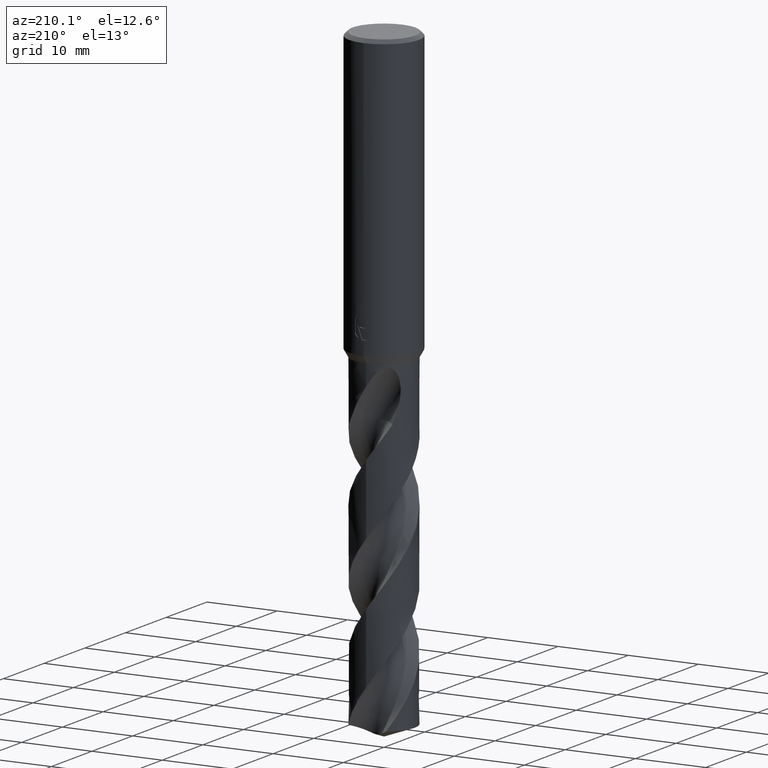
[diagram: clean part render]
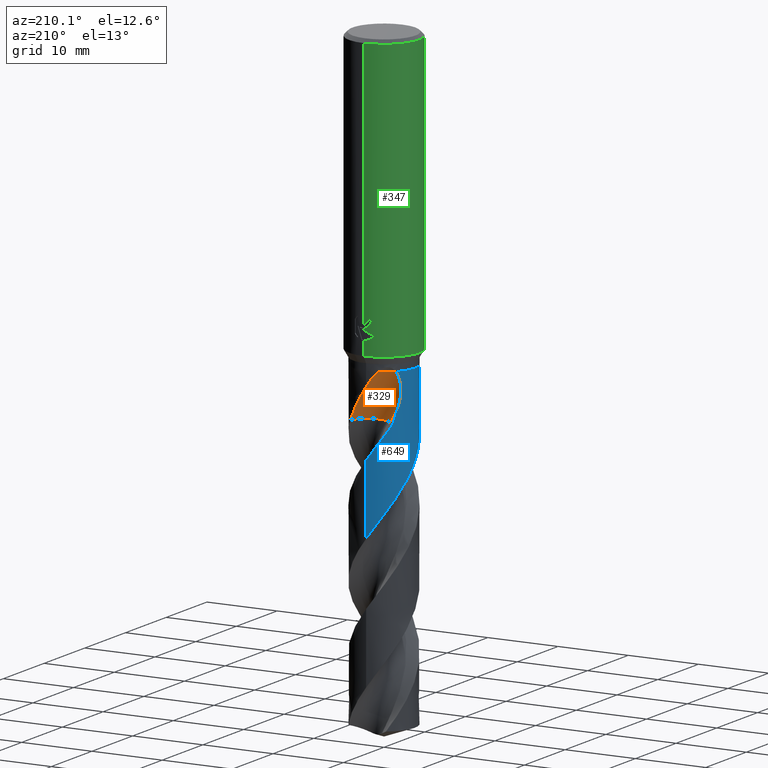
[diagram: same view with three faces highlighted in distinct colors, each labeled with its STEP entity id]
A machine part, auxiliary view with three faces highlighted in distinct colors.
Their STEP definitions:

[orange] entity #329 — the highlighted face is a SurfaceOfRevolution surface.
#327=VERTEX_POINT('',#823);
#329=ADVANCED_FACE('',(#825),#826,.F.);
#341=EDGE_CURVE('',#663,#327,#839,.T.);
#345=VERTEX_POINT('',#843);
#369=EDGE_CURVE('',#327,#635,#870,.T.);
#395=EDGE_CURVE('',#345,#477,#899,.T.);
#397=EDGE_CURVE('',#635,#521,#901,.T.);
#409=EDGE_CURVE('',#477,#521,#914,.T.);
#431=EDGE_CURVE('',#539,#663,#939,.T.);
#477=VERTEX_POINT('',#988);
#521=VERTEX_POINT('',#1035);
#531=EDGE_CURVE('',#539,#345,#1046,.T.);
#539=VERTEX_POINT('',#1054);
#635=VERTEX_POINT('',#1156);
#663=VERTEX_POINT('',#1189);
#823=CARTESIAN_POINT('',(-1.49956764850811,4.13647396674364,-42.0));
#825=FACE_OUTER_BOUND('',#1629,.T.);
#826=SURFACE_OF_REVOLUTION('',#1630,#1631);
#839=B_SPLINE_CURVE_WITH_KNOTS('',3,(#1678,#1679,#1680,#1681,#1682,#1683,#1684,#1685,#1686,#1687,#1688,#1689,#1690,#1691),.UNSPECIFIED.,.F.,.F.,(4,2,2,2,2,2,4),(0.0,2.15576154881915,3.33284950966387,4.3989839587945,5.63755759780346,7.12535606732662,7.89111209973637),.UNSPECIFIED.);
#843=CARTESIAN_POINT('',(-0.353185353426614,1.34132505732984,-48.6578));
#870=B_SPLINE_CURVE_WITH_KNOTS('',3,(#1849,#1850,#1851,#1852,#1853,#1854,#1855,#1856,#1857,#1858,#1859,#1860),.UNSPECIFIED.,.F.,.F.,(4,2,2,2,2,4),(0.0,0.95628261762468,1.83005544775629,2.71079653608656,3.25686361524105,3.82634129944145),.UNSPECIFIED.);
#899=CIRCLE('',#2592,2.93333333);
#901=B_SPLINE_CURVE_WITH_KNOTS('',3,(#2595,#2596,#2597,#2598,#2599,#2600,#2601,#2602),.UNSPECIFIED.,.F.,.F.,(4,2,2,4),(0.0,0.824741990476074,1.97805505680868,3.0737868511628),.UNSPECIFIED.);
#914=CIRCLE('',#2850,19.1191435449186);
#939=B_SPLINE_CURVE_WITH_KNOTS('',3,(#2918,#2919,#2920,#2921,#2922,#2923,#2924,#2925,#2926,#2927,#2928,#2929,#2930,#2931),.UNSPECIFIED.,.F.,.F.,(4,2,2,2,2,2,4),(0.0,2.15576154881915,3.33284950966387,4.3989839587945,5.63755759780346,7.12535606732662,7.89111209973637),.UNSPECIFIED.);
#988=CARTESIAN_POINT('',(-2.07417988905281,2.1791534409472,-48.6578));
#1035=CARTESIAN_POINT('',(-3.57993875328587,2.55797593519679,-46.2485858172271));
#1046=CIRCLE('',#3683,2.93333333);
#1054=CARTESIAN_POINT('',(2.80371770920414,3.39093144555015,-48.6578));
#1156=CARTESIAN_POINT('',(-3.33358693144172,2.87164032924058,-42.0));
#1189=CARTESIAN_POINT('',(-1.3052254413547E-012,4.39990436294102,-43.9807111286106));
#1629=EDGE_LOOP('',(#5289,#5290,#5291,#5292,#5293,#5294,#5295));
#1630=(B_SPLINE_CURVE(3,(#5297,#5298,#5299,#5300,#5301,#5302,#5303,#5304,#5305),.UNSPECIFIED.,.F.,.F.)B_SPLINE_CURVE_WITH_KNOTS((4,1,3,1,4),(-2.85637477769835,-2.55359021676958,-2.2508056558408,-1.94802109491203,-1.64523653398326),.UNSPECIFIED.)RATIONAL_B_SPLINE_CURVE((1.09167849033683,1.03055949677894,0.969440503221057,1.03055949677894,1.09167849033683,1.03055949677894,0.969440503221057,1.03055949677894,1.09167849033683))BOUNDED_CURVE()REPRESENTATION_ITEM('')GEOMETRIC_REPRESENTATION_ITEM()CURVE());
#1631=AXIS1_PLACEMENT('',#5312,#5313);
#1678=CARTESIAN_POINT('',(2.80371770920413,3.39093144555015,-48.6578));
#1679=CARTESIAN_POINT('',(2.51348316595106,3.63090379841182,-48.0457994123778));
#1680=CARTESIAN_POINT('',(2.17977653953127,3.84422464693483,-47.47521739291));
#1681=CARTESIAN_POINT('',(1.5978897982661,4.10569330854763,-46.5220270816189));
#1682=CARTESIAN_POINT('',(1.38849970313661,4.18090785448243,-46.1866643448757));
#1683=CARTESIAN_POINT('',(0.983147956990871,4.2933177590356,-45.5374938248999));
#1684=CARTESIAN_POINT('',(0.788996004087948,4.33303177861168,-45.2267113355814));
#1685=CARTESIAN_POINT('',(0.368741122724618,4.39034807618537,-44.556899026901));
#1686=CARTESIAN_POINT('',(0.139127374482289,4.40380421035896,-44.1926259639668));
#1687=CARTESIAN_POINT('',(-0.37078491324727,4.3930775267784,-43.4133298508399));
#1688=CARTESIAN_POINT('',(-0.67311051076259,4.35990253359284,-42.9699046527819));
#1689=CARTESIAN_POINT('',(-1.14616479019225,4.25119237186679,-42.3766129955495));
#1690=CARTESIAN_POINT('',(-1.31944426832932,4.20177327874594,-42.1764895361742));
#1691=CARTESIAN_POINT('',(-1.49956764850812,4.13647396674363,-42.0));
#1849=CARTESIAN_POINT('',(-1.37240712519494,4.4499,-42.0));
#1850=CARTESIAN_POINT('',(-1.47261664998568,4.14730035524695,-42.0));
#1851=CARTESIAN_POINT('',(-1.62600246707385,3.86735149607128,-41.9999999999875));
#1852=CARTESIAN_POINT('',(-2.02498230329928,3.40766107195271,-41.9999999999875));
#1853=CARTESIAN_POINT('',(-2.25462145756226,3.22950054938287,-42.0000000000007));
#1854=CARTESIAN_POINT('',(-2.77705059324489,2.97004095884365,-42.0000000000007));
#1855=CARTESIAN_POINT('',(-3.06097264737727,2.89411186290925,-42.0000000000001));
#1856=CARTESIAN_POINT('',(-3.53426626722661,2.85496235740067,-42.0000000000001));
#1857=CARTESIAN_POINT('',(-3.71643629393769,2.86004288335264,-42.0));
#1858=CARTESIAN_POINT('',(-4.0848784723059,2.9072921064903,-42.0));
#1859=CARTESIAN_POINT('',(-4.27006535935382,2.95091103145621,-42.0));
#1860=CARTESIAN_POINT('',(-4.4499,3.01132854258825,-42.0));
#2592=AXIS2_PLACEMENT_3D('',#5405,#5406,#5407);
#2595=CARTESIAN_POINT('',(-3.33358693144172,2.87164032924058,-42.0));
#2596=CARTESIAN_POINT('',(-3.44229852524496,2.74544157619789,-42.2187084126268));
#2597=CARTESIAN_POINT('',(-3.52798305469872,2.63150193611133,-42.490543912431));
#2598=CARTESIAN_POINT('',(-3.68182194532079,2.41401261591013,-43.239009068012));
#2599=CARTESIAN_POINT('',(-3.73286762146872,2.32913956487915,-43.7681043249718));
#2600=CARTESIAN_POINT('',(-3.73917799721828,2.31899944088827,-44.9217496596127));
#2601=CARTESIAN_POINT('',(-3.70203852532119,2.38709221802838,-45.5541228590299));
#2602=CARTESIAN_POINT('',(-3.57993875328587,2.55797593519678,-46.2485858172271));
#2850=AXIS2_PLACEMENT_3D('',#5418,#5419,#5420);
#2918=CARTESIAN_POINT('',(2.80371770920413,3.39093144555015,-48.6578));
#2919=CARTESIAN_POINT('',(2.51348316595106,3.63090379841182,-48.0457994123778));
#2920=CARTESIAN_POINT('',(2.17977653953127,3.84422464693483,-47.47521739291));
#2921=CARTESIAN_POINT('',(1.5978897982661,4.10569330854763,-46.5220270816189));
#2922=CARTESIAN_POINT('',(1.38849970313661,4.18090785448243,-46.1866643448757));
#2923=CARTESIAN_POINT('',(0.983147956990871,4.2933177590356,-45.5374938248999));
#2924=CARTESIAN_POINT('',(0.788996004087948,4.33303177861168,-45.2267113355814));
#2925=CARTESIAN_POINT('',(0.368741122724618,4.39034807618537,-44.556899026901));
#2926=CARTESIAN_POINT('',(0.139127374482289,4.40380421035896,-44.1926259639668));
#2927=CARTESIAN_POINT('',(-0.37078491324727,4.3930775267784,-43.4133298508399));
#2928=CARTESIAN_POINT('',(-0.67311051076259,4.35990253359284,-42.9699046527819));
#2929=CARTESIAN_POINT('',(-1.14616479019225,4.25119237186679,-42.3766129955495));
#2930=CARTESIAN_POINT('',(-1.31944426832932,4.20177327874594,-42.1764895361742));
#2931=CARTESIAN_POINT('',(-1.49956764850812,4.13647396674363,-42.0));
#3683=AXIS2_PLACEMENT_3D('',#5568,#5569,#5570);
#5289=ORIENTED_EDGE('',*,*,#397,.F.);
#5290=ORIENTED_EDGE('',*,*,#369,.F.);
#5291=ORIENTED_EDGE('',*,*,#341,.F.);
#5292=ORIENTED_EDGE('',*,*,#431,.F.);
#5293=ORIENTED_EDGE('',*,*,#531,.T.);
#5294=ORIENTED_EDGE('',*,*,#395,.T.);
#5295=ORIENTED_EDGE('',*,*,#409,.T.);
#5297=CARTESIAN_POINT('',(-2.07417988905281,2.1791534409472,-48.6578));
#5298=CARTESIAN_POINT('',(-1.66791224952913,1.77287909208874,-48.6578));
#5299=CARTESIAN_POINT('',(-0.611500645605306,1.19559870064149,-48.6578));
#5300=CARTESIAN_POINT('',(0.585677398980423,1.32218012430348,-48.6578));
#5301=CARTESIAN_POINT('',(1.11694950665095,1.54095441227129,-48.6578));
#5302=CARTESIAN_POINT('',(1.64822161432148,1.75972870023909,-48.6578));
#5303=CARTESIAN_POINT('',(2.58738335315479,2.51287765998478,-48.6578));
#5304=CARTESIAN_POINT('',(2.93095433290253,3.66666148251376,-48.6578));
#5305=CARTESIAN_POINT('',(2.93332547722847,4.24121053972219,-48.6578));
#5312=CARTESIAN_POINT('',(-1.49154508875708,21.26666665,-49.5900156804732));
#5313=DIRECTION('',(0.847998304005088,-0.0,0.52999894000318));
#5405=CARTESIAN_POINT('',(1.71269515501595E-005,4.25331620304845,-48.6578));
#5406=DIRECTION('',(0.0,0.0,-1.0));
#5407=DIRECTION('',(0.707100942428954,0.70711261989593,0.0));
#5418=CARTESIAN_POINT('',(-1.49154508875708,21.26666665,-49.5900156804732));
#5419=DIRECTION('',(-0.847998304005088,1.94380786969579E-017,-0.52999894000318));
#5420=DIRECTION('',(-0.0535598124395258,-0.994880693103216,0.0856956999032413));
#5568=CARTESIAN_POINT('',(1.71269515501595E-005,4.25331620304845,-48.6578));
#5569=DIRECTION('',(0.0,0.0,-1.0));
#5570=DIRECTION('',(0.707100942428954,0.70711261989593,0.0));

[blue] entity #649 — the highlighted conical surface has half-angle 0 deg.
#279=VERTEX_POINT('',#773);
#315=EDGE_CURVE('',#561,#403,#811,.T.);
#333=EDGE_CURVE('',#521,#561,#830,.T.);
#335=EDGE_CURVE('',#621,#641,#832,.T.);
#397=EDGE_CURVE('',#635,#521,#901,.T.);
#403=VERTEX_POINT('',#907);
#483=EDGE_CURVE('',#279,#535,#994,.T.);
#521=VERTEX_POINT('',#1035);
#535=VERTEX_POINT('',#1050);
#561=VERTEX_POINT('',#1077);
#565=EDGE_CURVE('',#535,#621,#1081,.T.);
#577=EDGE_CURVE('',#641,#635,#1093,.T.);
#621=VERTEX_POINT('',#1142);
#635=VERTEX_POINT('',#1156);
#641=VERTEX_POINT('',#1163);
#649=ADVANCED_FACE('',(#1172),#1173,.T.);
#717=EDGE_CURVE('',#403,#279,#1248,.T.);
#773=CARTESIAN_POINT('',(-1.72999698641517E-012,4.39994662907025,-63.1689129008051));
#811=B_SPLINE_CURVE_WITH_KNOTS('',3,(#1523,#1524,#1525,#1526,#1527,#1528,#1529,#1530,#1531,#1532,#1533,#1534,#1535,#1536,#1537,#1538,#1539,#1540,#1541,#1542,#1543,#1544,#1545,#1546,#1547,#1548,#1549,#1550,#1551,#1552,#1553,#1554,#1555,#1556,#1557,#1558,#1559,#1560,#1561,#1562,#1563,#1564,#1565,#1566,#1567,#1568,#1569,#1570,#1571,#1572,#1573,#1574,#1575,#1576,#1577,#1578,#1579,#1580,#1581,#1582,#1583,#1584,#1585,#1586,#1587,#1588,#1589,#1590,#1591,#1592,#1593,#1594,#1595,#1596,#1597,#1598,#1599,#1600,#1601,#1602,#1603,#1604,#1605,#1606,#1607,#1608,#1609,#1610,#1611,#1612,#1613,#1614),.UNSPECIFIED.,.F.,.F.,(4,2,2,2,2,2,2,2,2,2,2,2,2,2,2,2,2,2,2,2,2,2,2,2,2,2,2,2,2,2,2,2,2,2,2,2,2,2,2,2,2,2,2,2,2,4),(0.0,0.188253537942638,0.310667571732745,0.368015120108587,0.859253428127349,1.03084854026869,1.14065679344308,1.24377536153375,1.38197476283653,1.53557516009202,1.61382984971237,2.17629791244006,2.55120610951194,2.92958990199076,3.3334873049027,4.40505101746511,4.94586345637353,7.01752759592153,7.62671836675117,8.22875743289926,8.8377335792982,10.044897861996,12.363678365139,12.7435472120691,14.219295182485,16.6650966769269,17.8755386632908,20.2760069407097,20.8856519834839,23.3007771965269,24.5182944187921,25.5092115233415,27.3595020648481,28.56333673034,31.0973801045769,31.5007969005396,32.9889989745965,35.4329396304814,36.5814572233399,38.9889780559688,40.1206590792744,41.0976029672566,43.4730550609567,44.0411999934884,46.0472631615811,48.0635370413985),.UNSPECIFIED.);
#830=B_SPLINE_CURVE_WITH_KNOTS('',3,(#1663,#1664,#1665,#1666),.UNSPECIFIED.,.F.,.F.,(4,4),(0.0,2.528625359465),.UNSPECIFIED.);
#832=LINE('',#1669,#1670);
#901=B_SPLINE_CURVE_WITH_KNOTS('',3,(#2595,#2596,#2597,#2598,#2599,#2600,#2601,#2602),.UNSPECIFIED.,.F.,.F.,(4,2,2,4),(0.0,0.824741990476074,1.97805505680868,3.0737868511628),.UNSPECIFIED.);
#907=CARTESIAN_POINT('',(1.51453929892228E-011,4.39992481637956,-53.2662717638973));
#994=B_SPLINE_CURVE_WITH_KNOTS('',3,(#3347,#3348,#3349,#3350,#3351,#3352,#3353,#3354,#3355,#3356,#3357,#3358,#3359,#3360,#3361,#3362,#3363,#3364,#3365,#3366,#3367,#3368,#3369,#3370,#3371,#3372,#3373,#3374,#3375,#3376,#3377,#3378,#3379,#3380,#3381,#3382,#3383,#3384,#3385,#3386,#3387,#3388,#3389,#3390,#3391,#3392,#3393,#3394,#3395,#3396,#3397,#3398,#3399,#3400,#3401,#3402,#3403,#3404,#3405,#3406,#3407,#3408,#3409,#3410,#3411,#3412,#3413,#3414,#3415,#3416,#3417,#3418,#3419,#3420,#3421,#3422,#3423,#3424),.UNSPECIFIED.,.F.,.F.,(4,2,2,2,2,2,2,2,2,2,2,2,2,2,2,2,2,2,2,2,2,2,2,2,2,2,2,2,2,2,2,2,2,2,2,2,2,2,4),(0.0,2.38158495089044,3.34370118732634,5.29067246798251,6.92036597297329,7.83185490015238,10.2543834718179,10.8557028205317,13.2841928761481,14.2041513812472,16.7423789497106,17.0420610142299,19.3070623540078,20.4294436426887,22.8589142573478,23.4618247443925,25.8968627470963,26.8316143139627,28.15471933148,29.376904905831,29.5253060991929,31.6178238319261,32.1165925123855,33.0069014695142,35.4463483811164,36.4476094126919,38.883160304454,39.0925028515234,43.3356823436521,44.3980819223111,44.8561609553654,45.9851481560077,46.6349259329818,46.9662502034331,47.2058308303168,47.4181915376629,47.6873889016957,48.2455132953649,49.1459108642999),.UNSPECIFIED.);
#1035=CARTESIAN_POINT('',(-3.57993875328587,2.55797593519679,-46.2485858172271));
#1050=CARTESIAN_POINT('',(-2.80371770920414,-3.39093144555015,-48.6578));
#1077=CARTESIAN_POINT('',(-3.05827995742593,3.1632535091789,-48.6578));
#1081=B_SPLINE_CURVE_WITH_KNOTS('',3,(#3826,#3827,#3828,#3829,#3830,#3831,#3832,#3833,#3834,#3835,#3836,#3837,#3838,#3839),.UNSPECIFIED.,.F.,.F.,(4,2,2,2,2,2,4),(0.0,2.15576154881917,3.33284950966375,4.39898395879411,5.63755759780335,7.1253560673268,7.89111209973673),.UNSPECIFIED.);
#1093=CIRCLE('',#3898,4.3999);
#1142=CARTESIAN_POINT('',(1.30211682229816E-012,-4.39990436294101,-43.9807111286106));
#1156=CARTESIAN_POINT('',(-3.33358693144172,2.87164032924058,-42.0));
#1163=CARTESIAN_POINT('',(5.38606711119224E-016,-4.3999,-42.0));
#1172=FACE_OUTER_BOUND('',#4711,.T.);
#1173=CONICAL_SURFACE('',#4712,4.39995,2.20271444614333E-006);
#1248=LINE('',#5137,#5138);
#1523=CARTESIAN_POINT('',(-3.05827995742593,3.1632535091789,-48.6578));
#1524=CARTESIAN_POINT('',(-3.0327411380088,3.18794497341676,-48.7095282398878));
#1525=CARTESIAN_POINT('',(-3.00683337159632,3.21239597597386,-48.7612035636025));
#1526=CARTESIAN_POINT('',(-2.96333749913047,3.25244929398528,-48.846360109749));
#1527=CARTESIAN_POINT('',(-2.94603140109173,3.26813446185506,-48.8798406691308));
#1528=CARTESIAN_POINT('',(-2.92031716227707,3.29106712292583,-48.9289555739717));
#1529=CARTESIAN_POINT('',(-2.91207369302443,3.29836370302396,-48.9446075659908));
#1530=CARTESIAN_POINT('',(-2.83279282034171,3.36800705533468,-49.094228564469));
#1531=CARTESIAN_POINT('',(-2.75993428325304,3.42804262245876,-49.2246758590977));
#1532=CARTESIAN_POINT('',(-2.65595325416952,3.50803781195866,-49.4020327026167));
#1533=CARTESIAN_POINT('',(-2.62871436713723,3.52849781307282,-49.4477501374524));
#1534=CARTESIAN_POINT('',(-2.58343977127982,3.56168282961354,-49.5226861084969));
#1535=CARTESIAN_POINT('',(-2.56564880626663,3.57452036516756,-49.5518738610785));
#1536=CARTESIAN_POINT('',(-2.53089551446547,3.59920290383422,-49.6084525119566));
#1537=CARTESIAN_POINT('',(-2.51396498634439,3.61104915494578,-49.6358181288085));
#1538=CARTESIAN_POINT('',(-2.47410487893776,3.63852208090583,-49.6998569088954));
#1539=CARTESIAN_POINT('',(-2.45112237017642,3.65404413336454,-49.7364833079446));
#1540=CARTESIAN_POINT('',(-2.40227874112399,3.68636389947742,-49.8138727481561));
#1541=CARTESIAN_POINT('',(-2.37642235944096,3.70308446468295,-49.8545784309596));
#1542=CARTESIAN_POINT('',(-2.33718488451999,3.72787951619217,-49.916143174252));
#1543=CARTESIAN_POINT('',(-2.32398714571723,3.73612160158428,-49.9368225896692));
#1544=CARTESIAN_POINT('',(-2.21447516153345,3.80370065845982,-50.1083802813118));
#1545=CARTESIAN_POINT('',(-2.11672377703261,3.85890562926488,-50.2608235984182));
#1546=CARTESIAN_POINT('',(-1.95186400465141,3.94398497328995,-50.5142838408132));
#1547=CARTESIAN_POINT('',(-1.88513530921175,3.97630972181561,-50.6159296661454));
#1548=CARTESIAN_POINT('',(-1.7495929182581,4.03779703806268,-50.8199076039876));
#1549=CARTESIAN_POINT('',(-1.68062974740423,4.06698914193854,-50.9224429269622));
#1550=CARTESIAN_POINT('',(-1.53634995338965,4.1237524122817,-51.1339908317921));
#1551=CARTESIAN_POINT('',(-1.46132371610243,4.15093255449208,-51.2422543253315));
#1552=CARTESIAN_POINT('',(-1.18374975771233,4.24301236812389,-51.638929552948));
#1553=CARTESIAN_POINT('',(-0.977687577739532,4.29516731990296,-51.9256287628454));
#1554=CARTESIAN_POINT('',(-0.663323781804006,4.35095282146715,-52.3593771757845));
#1555=CARTESIAN_POINT('',(-0.557387535507825,4.36578102595928,-52.5050773022151));
#1556=CARTESIAN_POINT('',(-0.0443070736059122,4.41867333941312,-53.2080779599381));
#1557=CARTESIAN_POINT('',(0.366823644748641,4.40371470244938,-53.761278782907));
#1558=CARTESIAN_POINT('',(0.888906618487811,4.31088467160883,-54.4819705381562));
#1559=CARTESIAN_POINT('',(1.00660211361483,4.28492995798384,-54.6456843378718));
#1560=CARTESIAN_POINT('',(1.23814947525487,4.2238046976726,-54.9713726447134));
#1561=CARTESIAN_POINT('',(1.35195592470209,4.18876562683544,-55.1332583364792));
#1562=CARTESIAN_POINT('',(1.57773798652227,4.10908990373662,-55.4588961594344));
#1563=CARTESIAN_POINT('',(1.68960659620233,4.06437225251376,-55.6225592060009));
#1564=CARTESIAN_POINT('',(2.01740590704932,3.91745787612543,-56.1108023071305));
#1565=CARTESIAN_POINT('',(2.22688042677672,3.80227756065534,-56.4345893332658));
#1566=CARTESIAN_POINT('',(2.80820363436927,3.41809799376888,-57.3829929285566));
#1567=CARTESIAN_POINT('',(3.14893949706914,3.10710687011122,-58.0021544125783));
#1568=CARTESIAN_POINT('',(3.4825377467898,2.69017184175722,-58.7274458575724));
#1569=CARTESIAN_POINT('',(3.52796001813354,2.63032038032635,-58.8295083400139));
#1570=CARTESIAN_POINT('',(3.74220468409639,2.33248697537117,-59.3285286082001));
#1571=CARTESIAN_POINT('',(3.88864707670525,2.07920061336112,-59.7252791277462));
#1572=CARTESIAN_POINT('',(4.20828061036533,1.3725330681872,-60.7799388723287));
#1573=CARTESIAN_POINT('',(4.33353346223091,0.902042086509316,-61.4317859658759));
#1574=CARTESIAN_POINT('',(4.40265609782136,0.182686979384412,-62.4153987941264));
#1575=CARTESIAN_POINT('',(4.4060919857165,-0.057080486269397,-62.7404349216127));
#1576=CARTESIAN_POINT('',(4.35800668513883,-0.770061365308394,-63.711194501672));
#1577=CARTESIAN_POINT('',(4.24949419188234,-1.23558141785587,-64.353080095665));
#1578=CARTESIAN_POINT('',(4.02296818221609,-1.78600909997855,-65.1627248787));
#1579=CARTESIAN_POINT('',(3.9725107418717,-1.89559605746947,-65.326595289408));
#1580=CARTESIAN_POINT('',(3.70002932499942,-2.4285334103205,-66.1398567675578));
#1581=CARTESIAN_POINT('',(3.41465141977258,-2.81563167881674,-66.785167068757));
#1582=CARTESIAN_POINT('',(2.9005894016302,-3.31725046589189,-67.7623411950174));
#1583=CARTESIAN_POINT('',(2.71469369425478,-3.47104427207737,-68.0890415252756));
#1584=CARTESIAN_POINT('',(2.35612981615507,-3.72112416225277,-68.6827082116681));
#1585=CARTESIAN_POINT('',(2.18803949809467,-3.82236916290228,-68.9486052237769));
#1586=CARTESIAN_POINT('',(1.68860964830643,-4.07946969808654,-69.7130290152621));
#1587=CARTESIAN_POINT('',(1.34351104905469,-4.20580722553718,-70.2094753624929));
#1588=CARTESIAN_POINT('',(0.754297211786893,-4.34137226489917,-71.0307164111667));
#1589=CARTESIAN_POINT('',(0.518238064455026,-4.37581997656342,-71.3533886228085));
#1590=CARTESIAN_POINT('',(-0.219489884481141,-4.42297265830365,-72.359221860171));
#1591=CARTESIAN_POINT('',(-0.721821067954286,-4.36926557538777,-73.0365303579577));
#1592=CARTESIAN_POINT('',(-1.28127018372863,-4.21004334477176,-73.8265096282787));
#1593=CARTESIAN_POINT('',(-1.35745516286381,-4.1860993245528,-73.9349471402007));
#1594=CARTESIAN_POINT('',(-1.71137741901554,-4.0641930309209,-74.4439752194572));
#1595=CARTESIAN_POINT('',(-1.97954376747794,-3.94054904095961,-74.8443419002137));
#1596=CARTESIAN_POINT('',(-2.65011539560087,-3.5455118678637,-75.9025949637239));
#1597=CARTESIAN_POINT('',(-3.02343855130235,-3.23299787956609,-76.5544739992369));
#1598=CARTESIAN_POINT('',(-3.48631285636851,-2.69388863578138,-77.5216406341391));
#1599=CARTESIAN_POINT('',(-3.62081488886838,-2.51022824505545,-77.8303415687342));
#1600=CARTESIAN_POINT('',(-3.99163243190666,-1.91154793019667,-78.7870696061785));
#1601=CARTESIAN_POINT('',(-4.17504559939194,-1.46824975244931,-79.4309808409069));
#1602=CARTESIAN_POINT('',(-4.33491338973283,-0.78646612684737,-80.3836753605552));
#1603=CARTESIAN_POINT('',(-4.3693437367138,-0.564761208814774,-80.6876483046853));
#1604=CARTESIAN_POINT('',(-4.40174102623106,-0.148339905117861,-81.2548959551637));
#1605=CARTESIAN_POINT('',(-4.40399889607243,0.0452450818850428,-81.5172043762109));
#1606=CARTESIAN_POINT('',(-4.36808005597906,0.707605662780575,-82.4197365216184));
#1607=CARTESIAN_POINT('',(-4.26755461533373,1.1702217757147,-83.055479488204));
#1608=CARTESIAN_POINT('',(-4.05436764560959,1.71309844726774,-83.8474335466964));
#1609=CARTESIAN_POINT('',(-4.00924242191502,1.81619340867548,-84.0001336726709));
#1610=CARTESIAN_POINT('',(-3.78717829085436,2.27484694236834,-84.6932719410868));
#1611=CARTESIAN_POINT('',(-3.5664076806568,2.60742605298539,-85.2326750262809));
#1612=CARTESIAN_POINT('',(-3.04008343465187,3.20584783448867,-86.315674277492));
#1613=CARTESIAN_POINT('',(-2.73660948964027,3.46851297650115,-86.8556469693676));
#1614=CARTESIAN_POINT('',(-2.40185767013026,3.68660816095724,-87.3985309692288));
#1663=CARTESIAN_POINT('',(-3.57993875333849,2.55797593512314,-46.248585817256));
#1664=CARTESIAN_POINT('',(-3.43809243040741,2.75649577289648,-47.0553744898933));
#1665=CARTESIAN_POINT('',(-3.26713075151415,2.96133107065466,-47.8669637930723));
#1666=CARTESIAN_POINT('',(-3.05827995742593,3.1632535091789,-48.6578));
#1669=CARTESIAN_POINT('',(5.38612834150993E-016,-4.39995,-64.6992654846144));
#1670=VECTOR('',#5314,1.0);
#2595=CARTESIAN_POINT('',(-3.33358693144172,2.87164032924058,-42.0));
#2596=CARTESIAN_POINT('',(-3.44229852524496,2.74544157619789,-42.2187084126268));
#2597=CARTESIAN_POINT('',(-3.52798305469872,2.63150193611133,-42.490543912431));
#2598=CARTESIAN_POINT('',(-3.68182194532079,2.41401261591013,-43.239009068012));
#2599=CARTESIAN_POINT('',(-3.73286762146872,2.32913956487915,-43.7681043249718));
#2600=CARTESIAN_POINT('',(-3.73917799721828,2.31899944088827,-44.9217496596127));
#2601=CARTESIAN_POINT('',(-3.70203852532119,2.38709221802838,-45.5541228590299));
#2602=CARTESIAN_POINT('',(-3.57993875328587,2.55797593519678,-46.2485858172271));
#3347=CARTESIAN_POINT('',(-3.46915379840589,-2.70646853353331,-87.3985309692287));
#3348=CARTESIAN_POINT('',(-3.1803964228995,-3.07659570441037,-86.7583424225636));
#3349=CARTESIAN_POINT('',(-2.83327118045812,-3.39931184709052,-86.1197666417535));
#3350=CARTESIAN_POINT('',(-2.2818897068025,-3.76686789174357,-85.2226123123871));
#3351=CARTESIAN_POINT('',(-2.11660936969238,-3.86214916523605,-84.9652323246042));
#3352=CARTESIAN_POINT('',(-1.60007220393274,-4.11682776126019,-84.1842780281894));
#3353=CARTESIAN_POINT('',(-1.2340645036627,-4.24089929072817,-83.6575943220288));
#3354=CARTESIAN_POINT('',(-0.540355518509492,-4.37855789974573,-82.6971689777573));
#3355=CARTESIAN_POINT('',(-0.218538585852125,-4.4063218776863,-82.2634886502563));
#3356=CARTESIAN_POINT('',(0.283048142973554,-4.39455996907959,-81.5807657817278));
#3357=CARTESIAN_POINT('',(0.462162381974915,-4.37933259579746,-81.3347103216042));
#3358=CARTESIAN_POINT('',(1.11220879490972,-4.28378017847675,-80.4391926625833));
#3359=CARTESIAN_POINT('',(1.56968494987055,-4.13803677192044,-79.8014214454456));
#3360=CARTESIAN_POINT('',(2.10024107413193,-3.86818247139248,-78.9896309297375));
#3361=CARTESIAN_POINT('',(2.20332780556996,-3.81040248370387,-78.8277149807483));
#3362=CARTESIAN_POINT('',(2.71098381098477,-3.49835838486062,-78.0144367358386));
#3363=CARTESIAN_POINT('',(3.07442466129989,-3.18372277121976,-77.3756666758601));
#3364=CARTESIAN_POINT('',(3.49621759394151,-2.67750315328681,-76.4782951018136));
#3365=CARTESIAN_POINT('',(3.60323298876667,-2.53165087285002,-76.230578166167));
#3366=CARTESIAN_POINT('',(3.97116814208404,-1.95933090855737,-75.3036798473211));
#3367=CARTESIAN_POINT('',(4.16729758162601,-1.49710400375605,-74.6380670591931));
#3368=CARTESIAN_POINT('',(4.29541059483916,-0.955322952923458,-73.8770246050214));
#3369=CARTESIAN_POINT('',(4.30778231064306,-0.897898088485632,-73.7965710558122));
#3370=CARTESIAN_POINT('',(4.4040716534334,-0.402827652028052,-73.1075130558751));
#3371=CARTESIAN_POINT('',(4.4223525052396,0.0452173361527509,-72.5096445315346));
#3372=CARTESIAN_POINT('',(4.3480844323381,0.709120451653712,-71.6021063705277));
#3373=CARTESIAN_POINT('',(4.30697542805313,0.926438313306569,-71.299703015499));
#3374=CARTESIAN_POINT('',(4.12623651700447,1.6005389423067,-70.34832407634));
#3375=CARTESIAN_POINT('',(3.92853516383109,2.03805830711415,-69.7105745748985));
#3376=CARTESIAN_POINT('',(3.59909686909455,2.53380121647084,-68.8988041572167));
#3377=CARTESIAN_POINT('',(3.52978536515056,2.62949402668498,-68.7369229028092));
#3378=CARTESIAN_POINT('',(3.16108960661573,3.09762205083598,-67.9237217683344));
#3379=CARTESIAN_POINT('',(2.80651857472819,3.42219102070486,-67.2849777525448));
#3380=CARTESIAN_POINT('',(2.25292137936315,3.78385840179016,-66.3843320796177));
#3381=CARTESIAN_POINT('',(2.09348967638199,3.87434389635986,-66.1333055428448));
#3382=CARTESIAN_POINT('',(1.69522069365829,4.06856552800041,-65.5297362118507));
#3383=CARTESIAN_POINT('',(1.45186461855274,4.16167371609789,-65.1783120107407));
#3384=CARTESIAN_POINT('',(0.969737959431307,4.29849688731618,-64.4993239095512));
#3385=CARTESIAN_POINT('',(0.733935949650395,4.34489388859624,-64.1745691379449));
#3386=CARTESIAN_POINT('',(0.46740690548098,4.3751476610442,-63.8077349555846));
#3387=CARTESIAN_POINT('',(0.438576216831301,4.37813150235054,-63.7680404623934));
#3388=CARTESIAN_POINT('',(0.0021525042548699,4.41894244545776,-63.1684530421063));
#3389=CARTESIAN_POINT('',(-0.409533303735592,4.40011213727973,-62.6168266667392));
#3390=CARTESIAN_POINT('',(-0.910108060465379,4.30590544840726,-61.9261015289531));
#3391=CARTESIAN_POINT('',(-1.00571706202835,4.28457767261467,-61.7931930189526));
#3392=CARTESIAN_POINT('',(-1.26949201398045,4.21644113821949,-61.4224719947126));
#3393=CARTESIAN_POINT('',(-1.43543391561563,4.162854970397,-61.1837342356006));
#3394=CARTESIAN_POINT('',(-2.04241495625189,3.92629567539953,-60.2954273686774));
#3395=CARTESIAN_POINT('',(-2.45563932659236,3.68194777438593,-59.6577661456201));
#3396=CARTESIAN_POINT('',(-2.97177190933298,3.25058954187481,-58.7405876399183));
#3397=CARTESIAN_POINT('',(-3.11359827311334,3.11503952643453,-58.4720122011945));
#3398=CARTESIAN_POINT('',(-3.56840698762915,2.61798614549533,-57.5550494459702));
#3399=CARTESIAN_POINT('',(-3.83076320652685,2.21618127689767,-56.9179024561157));
#3400=CARTESIAN_POINT('',(-4.04006343037549,1.74326088600366,-56.2118697728391));
#3401=CARTESIAN_POINT('',(-4.05611000926772,1.70559415597843,-56.1559273623326));
#3402=CARTESIAN_POINT('',(-4.38704874764029,0.897557251305374,-54.9644509027117));
#3403=CARTESIAN_POINT('',(-4.47702745305198,0.0546443095364302,-53.8653526064181));
#3404=CARTESIAN_POINT('',(-4.29750123733959,-0.966384462570675,-52.449410567059));
#3405=CARTESIAN_POINT('',(-4.24708118290333,-1.16858388909872,-52.1623765910242));
#3406=CARTESIAN_POINT('',(-4.15378196496091,-1.45381532102781,-51.7559828303299));
#3407=CARTESIAN_POINT('',(-4.12291210153629,-1.53922802587223,-51.6338254598079));
#3408=CARTESIAN_POINT('',(-4.00626577368128,-1.83294124953026,-51.2116934783656));
#3409=CARTESIAN_POINT('',(-3.90967938731549,-2.03054430680825,-50.9277287562338));
#3410=CARTESIAN_POINT('',(-3.73278473364405,-2.33280275934906,-50.4431253429312));
#3411=CARTESIAN_POINT('',(-3.66512333229338,-2.43736576533068,-50.2651290174812));
#3412=CARTESIAN_POINT('',(-3.55996077340138,-2.58645517919635,-49.9903350008551));
#3413=CARTESIAN_POINT('',(-3.53735191939729,-2.61694058494182,-49.9300585913878));
#3414=CARTESIAN_POINT('',(-3.49133276403946,-2.67785237826844,-49.8142623645579));
#3415=CARTESIAN_POINT('',(-3.4713831860311,-2.70367888353546,-49.7661516536303));
#3416=CARTESIAN_POINT('',(-3.43238740430708,-2.75297253079352,-49.676141418578));
#3417=CARTESIAN_POINT('',(-3.4135296567496,-2.77633148023463,-49.63423519901));
#3418=CARTESIAN_POINT('',(-3.36944727315664,-2.82976868969094,-49.5399822919276));
#3419=CARTESIAN_POINT('',(-3.34391804543364,-2.85991330779975,-49.4879471589267));
#3420=CARTESIAN_POINT('',(-3.26248818993119,-2.95337536643257,-49.3297919505261));
#3421=CARTESIAN_POINT('',(-3.2037173056488,-3.01721438830589,-49.2261815030039));
#3422=CARTESIAN_POINT('',(-3.03871915577846,-3.18537165105081,-48.9617617490906));
#3423=CARTESIAN_POINT('',(-2.92679526805407,-3.2891678766563,-48.8069555981559));
#3424=CARTESIAN_POINT('',(-2.80371770920414,-3.39093144555015,-48.6578));
#3826=CARTESIAN_POINT('',(-2.80371770920414,-3.39093144555015,-48.6578));
#3827=CARTESIAN_POINT('',(-2.51348316595106,-3.63090379841183,-48.0457994123778));
#3828=CARTESIAN_POINT('',(-2.17977653953126,-3.84422464693483,-47.4752173929099));
#3829=CARTESIAN_POINT('',(-1.59788979826613,-4.10569330854761,-46.522027081619));
#3830=CARTESIAN_POINT('',(-1.38849970313668,-4.18090785448242,-46.1866643448758));
#3831=CARTESIAN_POINT('',(-0.98314795699084,-4.29331775903562,-45.5374938248998));
#3832=CARTESIAN_POINT('',(-0.788996004087881,-4.33303177861169,-45.2267113355813));
#3833=CARTESIAN_POINT('',(-0.368741122724588,-4.39034807618537,-44.5568990269009));
#3834=CARTESIAN_POINT('',(-0.139127374482278,-4.40380421035895,-44.1926259639667));
#3835=CARTESIAN_POINT('',(0.370784913247248,-4.3930775267784,-43.4133298508399));
#3836=CARTESIAN_POINT('',(0.673110510762586,-4.35990253359284,-42.9699046527819));
#3837=CARTESIAN_POINT('',(1.14616479019226,-4.25119237186679,-42.3766129955495));
#3838=CARTESIAN_POINT('',(1.31944426832932,-4.20177327874593,-42.1764895361742));
#3839=CARTESIAN_POINT('',(1.49956764850811,-4.13647396674363,-42.0));
#3898=AXIS2_PLACEMENT_3D('',#5594,#5595,#5596);
#4711=EDGE_LOOP('',(#5693,#5694,#5695,#5696,#5697,#5698,#5699,#5700));
#4712=AXIS2_PLACEMENT_3D('',#5701,#5702,#5703);
#5137=CARTESIAN_POINT('',(-5.39028511149161E-016,4.39995,-64.6992654846144));
#5138=VECTOR('',#5776,1.0);
#5314=DIRECTION('',(-2.69745810640127E-022,2.20271444614154E-006,0.999999999997574));
#5594=CARTESIAN_POINT('',(0.0,0.0,-42.0));
#5595=DIRECTION('',(0.0,0.0,-1.0));
#5596=DIRECTION('',(0.0,1.0,0.0));
#5693=ORIENTED_EDGE('',*,*,#717,.T.);
#5694=ORIENTED_EDGE('',*,*,#483,.T.);
#5695=ORIENTED_EDGE('',*,*,#565,.T.);
#5696=ORIENTED_EDGE('',*,*,#335,.T.);
#5697=ORIENTED_EDGE('',*,*,#577,.T.);
#5698=ORIENTED_EDGE('',*,*,#397,.T.);
#5699=ORIENTED_EDGE('',*,*,#333,.T.);
#5700=ORIENTED_EDGE('',*,*,#315,.T.);
#5701=CARTESIAN_POINT('',(0.0,0.0,-64.6992654846144));
#5702=DIRECTION('',(0.0,-0.0,-1.0));
#5703=DIRECTION('',(0.0,1.0,0.0));
#5776=DIRECTION('',(-2.69745810640127E-022,2.20271444614154E-006,-0.999999999997574));

[green] entity #347 — the highlighted cylindrical surface (partial cylindrical patch) has radius 5 mm, axis along (-0, -0, 1).
#305=VERTEX_POINT('',#800);
#307=VERTEX_POINT('',#802);
#325=VERTEX_POINT('',#821);
#343=EDGE_CURVE('',#305,#603,#841,.T.);
#347=ADVANCED_FACE('',(#845),#846,.T.);
#439=VERTEX_POINT('',#948);
#455=EDGE_CURVE('',#617,#307,#965,.T.);
#473=VERTEX_POINT('',#984);
#489=EDGE_CURVE('',#589,#645,#1000,.T.);
#493=EDGE_CURVE('',#515,#473,#1004,.T.);
#505=EDGE_CURVE('',#589,#671,#1017,.T.);
#515=VERTEX_POINT('',#1029);
#569=EDGE_CURVE('',#645,#617,#1085,.T.);
#587=EDGE_CURVE('',#473,#671,#1105,.T.);
#589=VERTEX_POINT('',#1107);
#593=EDGE_CURVE('',#439,#515,#1111,.T.);
#599=EDGE_CURVE('',#307,#325,#1119,.T.);
#603=VERTEX_POINT('',#1123);
#617=VERTEX_POINT('',#1138);
#619=EDGE_CURVE('',#677,#305,#1140,.T.);
#625=EDGE_CURVE('',#603,#439,#1146,.T.);
#645=VERTEX_POINT('',#1168);
#667=EDGE_CURVE('',#325,#677,#1194,.T.);
#671=VERTEX_POINT('',#1198);
#677=VERTEX_POINT('',#1205);
#800=CARTESIAN_POINT('',(-1.0350734039088,4.89168918151191,-35.3171221986971));
#802=CARTESIAN_POINT('',(-9.82055749138764E-015,5.0,-36.0232688117743));
#821=CARTESIAN_POINT('',(-0.486378944383044,4.97628732314171,-35.6432837483006));
#841=B_SPLINE_CURVE_WITH_KNOTS('',3,(#1694,#1695,#1696,#1697,#1698,#1699,#1700,#1701,#1702,#1703,#1704,#1705,#1706,#1707),.UNSPECIFIED.,.F.,.F.,(4,2,2,2,2,2,4),(3.1333306003147,3.58067338374496,4.02801616717522,4.47535895060548,4.92178692976237,5.36821490891926,5.81712521768469),.UNSPECIFIED.);
#845=FACE_OUTER_BOUND('',#1711,.T.);
#846=CYLINDRICAL_SURFACE('',#1712,5.0);
#948=CARTESIAN_POINT('',(-6.12289151258669E-016,5.0,-36.7128911336578));
#965=LINE('',#3206,#3207);
#984=CARTESIAN_POINT('',(-4.2179236924284E-015,5.0,-38.0310253601033));
#1000=LINE('',#3431,#3432);
#1004=B_SPLINE_CURVE_WITH_KNOTS('',3,(#3437,#3438,#3439,#3440,#3441,#3442,#3443,#3444,#3445,#3446,#3447,#3448,#3449,#3450,#3451,#3452),.UNSPECIFIED.,.F.,.F.,(4,2,2,2,2,2,2,4),(5.87517564836087,6.18447732711524,6.49384941721167,6.80322150730809,7.11259359740452,7.42196568750094,7.73087791711931,8.03979014673767),.UNSPECIFIED.);
#1017=CIRCLE('',#3474,5.0);
#1029=CARTESIAN_POINT('',(-1.337052752443,4.81791344226778,-37.3720803908795));
#1085=CIRCLE('',#3846,5.0);
#1105=LINE('',#3922,#3923);
#1107=CARTESIAN_POINT('',(6.12303176911189E-016,-5.0,-40.0));
#1111=ELLIPSE('',#3930,5.5746421602143,5.0);
#1119=B_SPLINE_CURVE_WITH_KNOTS('',3,(#4554,#4555,#4556,#4557,#4558,#4559,#4560,#4561,#4562,#4563,#4564,#4565,#4566,#4567,#4568,#4569,#4570,#4571,#4572,#4573,#4574,#4575,#4576,#4577,#4578,#4579,#4580),.UNSPECIFIED.,.F.,.F.,(4,2,3,2,2,2,2,2,2,2,2,2,4),(-0.542486104801738,-0.271243052400869,0.0,0.271243052400869,0.542486104801738,0.814298814936944,1.08611152507215,1.35696845964793,1.62782539422372,1.89896433698445,2.17010327974519,2.44124222250593,2.71238116526667),.UNSPECIFIED.);
#1123=CARTESIAN_POINT('',(-1.03127136200798E-015,5.0,-36.5000801551882));
#1138=CARTESIAN_POINT('',(0.0,5.0,-0.5));
#1140=CIRCLE('',#4661,5.0);
#1146=LINE('',#4669,#4670);
#1168=CARTESIAN_POINT('',(6.12303176911189E-016,-5.0,-0.5));
#1194=B_SPLINE_CURVE_WITH_KNOTS('',3,(#4743,#4744,#4745,#4746,#4747,#4748,#4749,#4750,#4751,#4752,#4753,#4754,#4755,#4756,#4757,#4758,#4759,#4760,#4761,#4762,#4763,#4764,#4765,#4766,#4767,#4768,#4769),.UNSPECIFIED.,.F.,.F.,(4,2,3,2,2,2,2,2,2,2,2,2,4),(-0.542486104801738,-0.271243052400869,0.0,0.271243052400869,0.542486104801738,0.814298814936944,1.08611152507215,1.35696845964793,1.62782539422372,1.89896433698445,2.17010327974519,2.44124222250593,2.71238116526667),.UNSPECIFIED.);
#1198=CARTESIAN_POINT('',(0.0,5.0,-40.0));
#1205=CARTESIAN_POINT('',(-0.562333990228013,4.96827741611056,-35.3171221986971));
#1694=CARTESIAN_POINT('',(-0.94469265800956,4.90994458032907,-34.8726918261735));
#1695=CARTESIAN_POINT('',(-1.00520381961469,4.89830199881157,-35.0184504386447));
#1696=CARTESIAN_POINT('',(-1.03510901790186,4.89168164551397,-35.1771875995894));
#1697=CARTESIAN_POINT('',(-1.03510901790186,4.89168164551397,-35.4754161218762));
#1698=CARTESIAN_POINT('',(-1.00520381961469,4.89830199881157,-35.6341532828209));
#1699=CARTESIAN_POINT('',(-0.884181496404448,4.92158716184659,-35.9256705077633));
#1700=CARTESIAN_POINT('',(-0.793087151052211,4.93783860177885,-36.058492898329));
#1701=CARTESIAN_POINT('',(-0.583306946064695,4.96698544190891,-36.2680190096183));
#1702=CARTESIAN_POINT('',(-0.4505605241988,4.98179488059623,-36.3589053581256));
#1703=CARTESIAN_POINT('',(-0.159315965562919,4.99959032724121,-36.4795914963682));
#1704=CARTESIAN_POINT('',(-0.000786407488332613,5.0022138695964,-36.5093686300866));
#1705=CARTESIAN_POINT('',(0.297528991236319,4.99338238693841,-36.5093686300866));
#1706=CARTESIAN_POINT('',(0.45644235283975,4.98128588348605,-36.4792943689047));
#1707=CARTESIAN_POINT('',(0.602168559078807,4.96360685655673,-36.4187026676641));
#1711=EDGE_LOOP('',(#5325,#5326,#5327,#5328,#5329,#5330,#5331,#5332,#5333,#5334,#5335,#5336));
#1712=AXIS2_PLACEMENT_3D('',#5337,#5338,#5339);
#3206=CARTESIAN_POINT('',(-6.12303176911189E-016,5.0,-20.25));
#3207=VECTOR('',#5503,1.0);
#3431=CARTESIAN_POINT('',(6.12303176911189E-016,-5.0,-20.25));
#3432=VECTOR('',#5519,1.0);
#3437=CARTESIAN_POINT('',(-1.37919625933141,4.80601890115366,-37.3124404256203));
#3438=CARTESIAN_POINT('',(-1.31957521374487,4.82312851403775,-37.4009601597598));
#3439=CARTESIAN_POINT('',(-1.25205684175205,4.84126211135571,-37.4821654513649));
#3440=CARTESIAN_POINT('',(-1.10836495207318,4.87616599259845,-37.6259115514073));
#3441=CARTESIAN_POINT('',(-1.0271524301646,4.89418890879516,-37.693486795378));
#3442=CARTESIAN_POINT('',(-0.850055905397219,4.9280353232664,-37.8128453591325));
#3443=CARTESIAN_POINT('',(-0.754172188044363,4.94382885968066,-37.8646375967458));
#3444=CARTESIAN_POINT('',(-0.553725999780852,4.97027232652294,-37.9480281920328));
#3445=CARTESIAN_POINT('',(-0.448990720596507,4.98092390938096,-37.9796924022892));
#3446=CARTESIAN_POINT('',(-0.237871423561604,4.99545922254228,-38.0213202804398));
#3447=CARTESIAN_POINT('',(-0.13148454027928,4.99933459384723,-38.0312723335086));
#3448=CARTESIAN_POINT('',(0.0746069172274575,5.00050365281921,-38.0312723335086));
#3449=CARTESIAN_POINT('',(0.180879006433096,4.99784409598263,-38.021349312763));
#3450=CARTESIAN_POINT('',(0.391840688075154,4.98574204084828,-37.9798000876985));
#3451=CARTESIAN_POINT('',(0.496532945230264,4.97630796240248,-37.9481849619546));
#3452=CARTESIAN_POINT('',(0.596736821506944,4.96426280185264,-37.9065357940623));
#3474=AXIS2_PLACEMENT_3D('',#5530,#5531,#5532);
#3846=AXIS2_PLACEMENT_3D('',#5590,#5591,#5592);
#3922=CARTESIAN_POINT('',(-6.12303176911189E-016,5.0,-20.25));
#3923=VECTOR('',#5622,1.0);
#3930=AXIS2_PLACEMENT_3D('',#5623,#5624,#5625);
#4554=CARTESIAN_POINT('',(0.665122770091172,4.95556371169883,-34.8135963457478));
#4555=CARTESIAN_POINT('',(0.728735196954596,4.94702581852882,-34.8772777273236));
#4556=CARTESIAN_POINT('',(0.783964166103465,4.93829748078097,-34.9579436035979));
#4557=CARTESIAN_POINT('',(0.857301933462898,4.92609533329604,-35.1349114173306));
#4558=CARTESIAN_POINT('',(0.875400981188567,4.92277087849253,-35.2312276617865));
#4559=CARTESIAN_POINT('',(0.875400981188567,4.92277087849253,-35.3216420125868));
#4560=CARTESIAN_POINT('',(0.875400981188567,4.92277087849253,-35.4120563633871));
#4561=CARTESIAN_POINT('',(0.857301933462898,4.92609533329604,-35.5083726078429));
#4562=CARTESIAN_POINT('',(0.783964166103465,4.93829748078097,-35.6853404215757));
#4563=CARTESIAN_POINT('',(0.728735196954596,4.94702581852882,-35.76600629785));
#4564=CARTESIAN_POINT('',(0.601376746032753,4.96411953593411,-35.8935028030135));
#4565=CARTESIAN_POINT('',(0.520641197115554,4.97361399538109,-35.9488552844728));
#4566=CARTESIAN_POINT('',(0.343503822480858,4.98897870858442,-36.0223670116056));
#4567=CARTESIAN_POINT('',(0.247086219827461,4.9947129574863,-36.0405166027747));
#4568=CARTESIAN_POINT('',(0.0662849978754683,5.00037576555244,-36.0405166027747));
#4569=CARTESIAN_POINT('',(-0.0299853354073752,5.00069421157822,-36.022481035651));
#4570=CARTESIAN_POINT('',(-0.207042529230845,4.99649628332508,-35.9491606175219));
#4571=CARTESIAN_POINT('',(-0.287834149954029,4.99211780487336,-35.8938794313977));
#4572=CARTESIAN_POINT('',(-0.415469449620835,4.98311973872716,-35.7663325263823));
#4573=CARTESIAN_POINT('',(-0.470822894462521,4.97792007270922,-35.6855206130663));
#4574=CARTESIAN_POINT('',(-0.544264412763406,4.97042641093864,-35.5083690868499));
#4575=CARTESIAN_POINT('',(-0.562348199187247,4.96827580785033,-35.4120216601737));
#4576=CARTESIAN_POINT('',(-0.562348199187247,4.96827580785033,-35.2312623649999));
#4577=CARTESIAN_POINT('',(-0.544264412763406,4.97042641093864,-35.1349149383237));
#4578=CARTESIAN_POINT('',(-0.470822894462521,4.97792007270922,-34.9577634121072));
#4579=CARTESIAN_POINT('',(-0.415469449620836,4.98311973872716,-34.8769514987913));
#4580=CARTESIAN_POINT('',(-0.351618594554054,4.98762111271133,-34.8131448640467));
#4661=AXIS2_PLACEMENT_3D('',#5664,#5665,#5666);
#4669=CARTESIAN_POINT('',(-6.12303176911189E-016,5.0,-20.25));
#4670=VECTOR('',#5670,1.0);
#4743=CARTESIAN_POINT('',(0.665122770091172,4.95556371169883,-34.8135963457478));
#4744=CARTESIAN_POINT('',(0.728735196954596,4.94702581852882,-34.8772777273236));
#4745=CARTESIAN_POINT('',(0.783964166103465,4.93829748078097,-34.9579436035979));
#4746=CARTESIAN_POINT('',(0.857301933462898,4.92609533329604,-35.1349114173306));
#4747=CARTESIAN_POINT('',(0.875400981188567,4.92277087849253,-35.2312276617865));
#4748=CARTESIAN_POINT('',(0.875400981188567,4.92277087849253,-35.3216420125868));
#4749=CARTESIAN_POINT('',(0.875400981188567,4.92277087849253,-35.4120563633871));
#4750=CARTESIAN_POINT('',(0.857301933462898,4.92609533329604,-35.5083726078429));
#4751=CARTESIAN_POINT('',(0.783964166103465,4.93829748078097,-35.6853404215757));
#4752=CARTESIAN_POINT('',(0.728735196954596,4.94702581852882,-35.76600629785));
#4753=CARTESIAN_POINT('',(0.601376746032753,4.96411953593411,-35.8935028030135));
#4754=CARTESIAN_POINT('',(0.520641197115554,4.97361399538109,-35.9488552844728));
#4755=CARTESIAN_POINT('',(0.343503822480858,4.98897870858442,-36.0223670116056));
#4756=CARTESIAN_POINT('',(0.247086219827461,4.9947129574863,-36.0405166027747));
#4757=CARTESIAN_POINT('',(0.0662849978754683,5.00037576555244,-36.0405166027747));
#4758=CARTESIAN_POINT('',(-0.0299853354073752,5.00069421157822,-36.022481035651));
#4759=CARTESIAN_POINT('',(-0.207042529230845,4.99649628332508,-35.9491606175219));
#4760=CARTESIAN_POINT('',(-0.287834149954029,4.99211780487336,-35.8938794313977));
#4761=CARTESIAN_POINT('',(-0.415469449620835,4.98311973872716,-35.7663325263823));
#4762=CARTESIAN_POINT('',(-0.470822894462521,4.97792007270922,-35.6855206130663));
#4763=CARTESIAN_POINT('',(-0.544264412763406,4.97042641093864,-35.5083690868499));
#4764=CARTESIAN_POINT('',(-0.562348199187247,4.96827580785033,-35.4120216601737));
#4765=CARTESIAN_POINT('',(-0.562348199187247,4.96827580785033,-35.2312623649999));
#4766=CARTESIAN_POINT('',(-0.544264412763406,4.97042641093864,-35.1349149383237));
#4767=CARTESIAN_POINT('',(-0.470822894462521,4.97792007270922,-34.9577634121072));
#4768=CARTESIAN_POINT('',(-0.415469449620836,4.98311973872716,-34.8769514987913));
#4769=CARTESIAN_POINT('',(-0.351618594554054,4.98762111271133,-34.8131448640467));
#5325=ORIENTED_EDGE('',*,*,#455,.T.);
#5326=ORIENTED_EDGE('',*,*,#599,.T.);
#5327=ORIENTED_EDGE('',*,*,#667,.T.);
#5328=ORIENTED_EDGE('',*,*,#619,.T.);
#5329=ORIENTED_EDGE('',*,*,#343,.T.);
#5330=ORIENTED_EDGE('',*,*,#625,.T.);
#5331=ORIENTED_EDGE('',*,*,#593,.T.);
#5332=ORIENTED_EDGE('',*,*,#493,.T.);
#5333=ORIENTED_EDGE('',*,*,#587,.T.);
#5334=ORIENTED_EDGE('',*,*,#505,.F.);
#5335=ORIENTED_EDGE('',*,*,#489,.T.);
#5336=ORIENTED_EDGE('',*,*,#569,.T.);
#5337=CARTESIAN_POINT('',(0.0,0.0,-20.25));
#5338=DIRECTION('',(-0.0,-0.0,1.0));
#5339=DIRECTION('',(0.0,1.0,0.0));
#5503=DIRECTION('',(0.0,0.0,-1.0));
#5519=DIRECTION('',(-0.0,-0.0,1.0));
#5530=CARTESIAN_POINT('',(0.0,0.0,-40.0));
#5531=DIRECTION('',(0.0,0.0,-1.0));
#5532=DIRECTION('',(0.0,1.0,0.0));
#5590=CARTESIAN_POINT('',(0.0,0.0,-0.5));
#5591=DIRECTION('',(0.0,0.0,-1.0));
#5592=DIRECTION('',(0.0,1.0,0.0));
#5622=DIRECTION('',(0.0,0.0,-1.0));
#5623=CARTESIAN_POINT('',(0.0,0.0,-36.7128911336578));
#5624=DIRECTION('',(-0.442195774284071,0.0,0.896918556617774));
#5625=DIRECTION('',(0.896918556617774,-0.0,0.442195774284071));
#5664=CARTESIAN_POINT('',(0.0,0.0,-35.3171221986971));
#5665=DIRECTION('',(0.0,-0.0,1.0));
#5666=DIRECTION('',(0.0,1.0,0.0));
#5670=DIRECTION('',(0.0,0.0,-1.0));